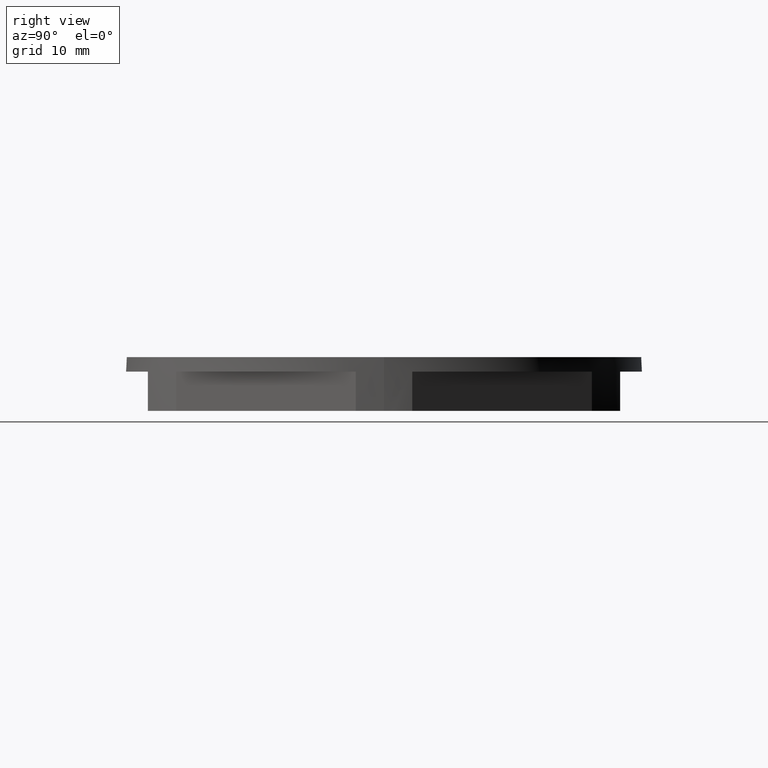
[diagram: clean part render]
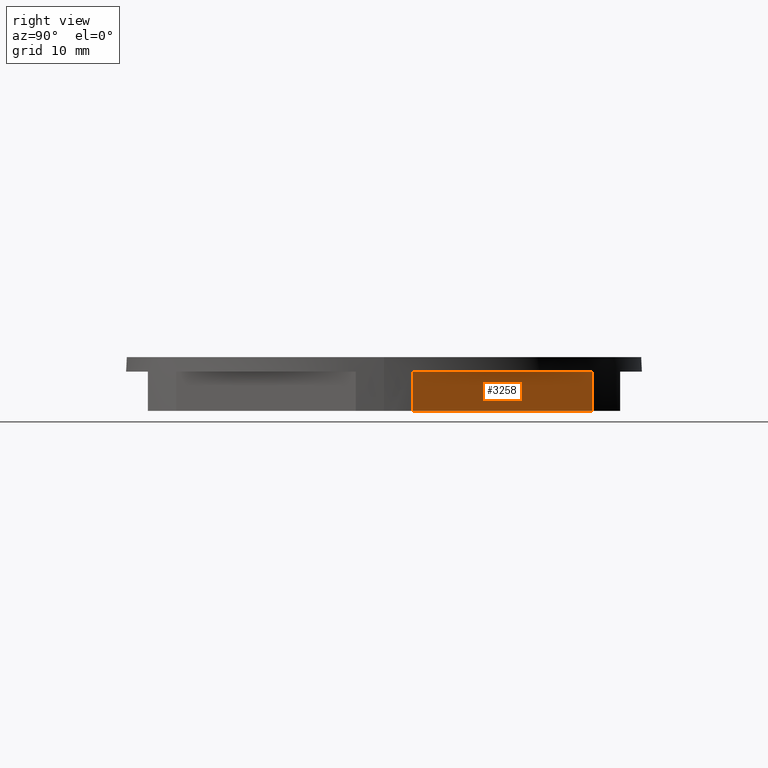
[diagram: same view with one face highlighted and labeled with its STEP entity id]
A machine part, right view. The second image highlights one B-rep face of the part: STEP entity #3258.
In plain terms, the highlighted planar face has unit normal (-0.866, -0.5, 0).
Its self-contained STEP definition (entity closure, byte-faithful):
#66 = VERTEX_POINT ( 'NONE', #137 ) ;
#83 = VERTEX_POINT ( 'NONE', #151 ) ;
#105 = VERTEX_POINT ( 'NONE', #229 ) ;
#106 = VERTEX_POINT ( 'NONE', #192 ) ;
#137 = CARTESIAN_POINT ( 'NONE',  ( 35.28725405153711100, 3.880683123146972100, 5.400000000000000400 ) ) ;
#151 = CARTESIAN_POINT ( 'NONE',  ( 35.28725405153711800, 3.880683123146964100, 0.0000000000000000000 ) ) ;
#192 = CARTESIAN_POINT ( 'NONE',  ( 21.00439719445137100, 28.61931687685302000, 5.400000000000000400 ) ) ;
#229 = CARTESIAN_POINT ( 'NONE',  ( 21.00439719445136400, 28.61931687685302000, 0.0000000000000000000 ) ) ;
#240 = CARTESIAN_POINT ( 'NONE',  ( 37.52776749732565500, -1.518373960890094300E-016, 7.400000000000000400 ) ) ;
#241 = DIRECTION ( 'NONE',  ( -0.8660254037844387100, -0.5000000000000000000, 0.0000000000000000000 ) ) ;
#242 = DIRECTION ( 'NONE',  ( 0.4999999999999999400, -0.8660254037844386000, 0.0000000000000000000 ) ) ;
#247 = FACE_OUTER_BOUND ( 'NONE', #371, .T. ) ;
#248 = PLANE ( 'NONE',  #3431 ) ;
#371 = EDGE_LOOP ( 'NONE', ( #458, #436, #399, #460 ) ) ;
#399 = ORIENTED_EDGE ( 'NONE', *, *, #3301, .F. ) ;
#436 = ORIENTED_EDGE ( 'NONE', *, *, #3353, .T. ) ;
#458 = ORIENTED_EDGE ( 'NONE', *, *, #3325, .F. ) ;
#460 = ORIENTED_EDGE ( 'NONE', *, *, #3359, .F. ) ;
#1453 = CARTESIAN_POINT ( 'NONE',  ( 35.28725405153711800, 3.880683123146979600, -7.000000000000002700 ) ) ;
#1466 = LINE ( 'NONE', #1453, #3496 ) ;
#1475 = DIRECTION ( 'NONE',  ( 0.0000000000000000000, 0.0000000000000000000, 1.000000000000000000 ) ) ;
#1982 = LINE ( 'NONE', #2031, #3540 ) ;
#2027 = DIRECTION ( 'NONE',  ( -0.4999999999999998900, 0.8660254037844386000, 0.0000000000000000000 ) ) ;
#2031 = CARTESIAN_POINT ( 'NONE',  ( 35.28725405153711100, 3.880683123146978700, 0.0000000000000000000 ) ) ;
#2042 = LINE ( 'NONE', #2043, #3535 ) ;
#2043 = CARTESIAN_POINT ( 'NONE',  ( 37.52776749732565500, -1.518373960890094300E-016, 5.400000000000000400 ) ) ;
#2047 = DIRECTION ( 'NONE',  ( -0.4999999999999999400, 0.8660254037844386000, -0.0000000000000000000 ) ) ;
#3134 = CARTESIAN_POINT ( 'NONE',  ( 21.00439719445137500, 28.61931687685301600, -7.000000000000002700 ) ) ;
#3138 = DIRECTION ( 'NONE',  ( -0.0000000000000000000, -0.0000000000000000000, -1.000000000000000000 ) ) ;
#3160 = LINE ( 'NONE', #3134, #3481 ) ;
#3258 = ADVANCED_FACE ( 'NONE', ( #247 ), #248, .F. ) ;
#3301 = EDGE_CURVE ( 'NONE', #106, #105, #3160, .T. ) ;
#3325 = EDGE_CURVE ( 'NONE', #83, #66, #1466, .T. ) ;
#3353 = EDGE_CURVE ( 'NONE', #83, #105, #1982, .T. ) ;
#3359 = EDGE_CURVE ( 'NONE', #66, #106, #2042, .T. ) ;
#3431 = AXIS2_PLACEMENT_3D ( 'NONE', #240, #241, #242 ) ;
#3481 = VECTOR ( 'NONE', #3138, 1000.000000000000000 ) ;
#3496 = VECTOR ( 'NONE', #1475, 1000.000000000000000 ) ;
#3535 = VECTOR ( 'NONE', #2047, 1000.000000000000100 ) ;
#3540 = VECTOR ( 'NONE', #2027, 1000.000000000000200 ) ;